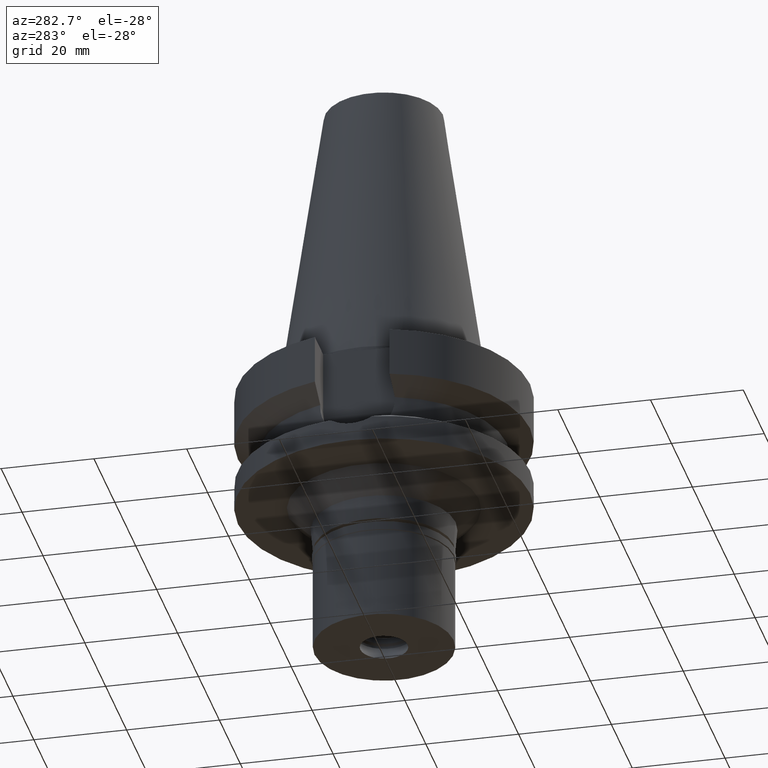
[diagram: clean part render]
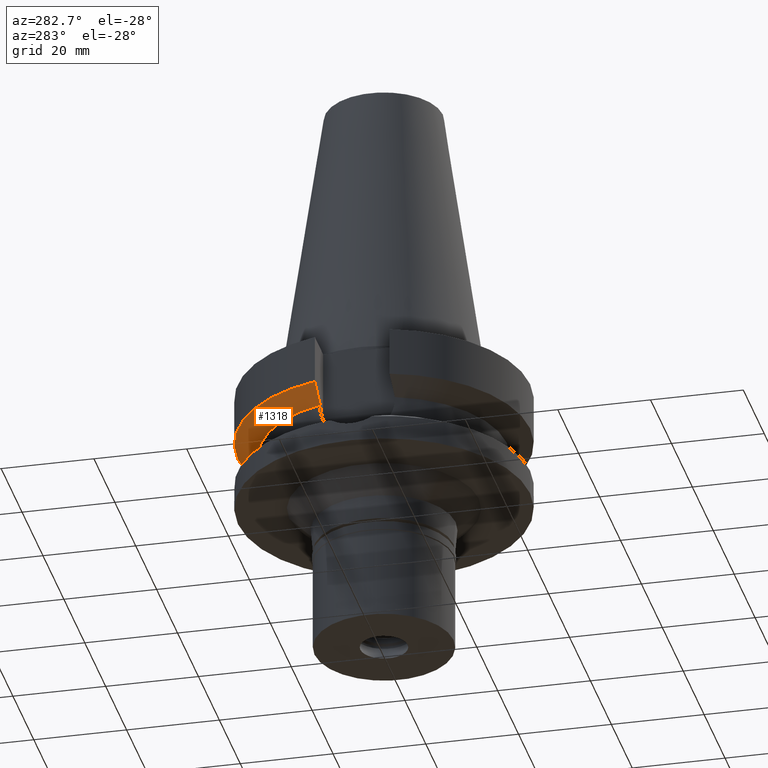
[diagram: same view with one face highlighted and labeled with its STEP entity id]
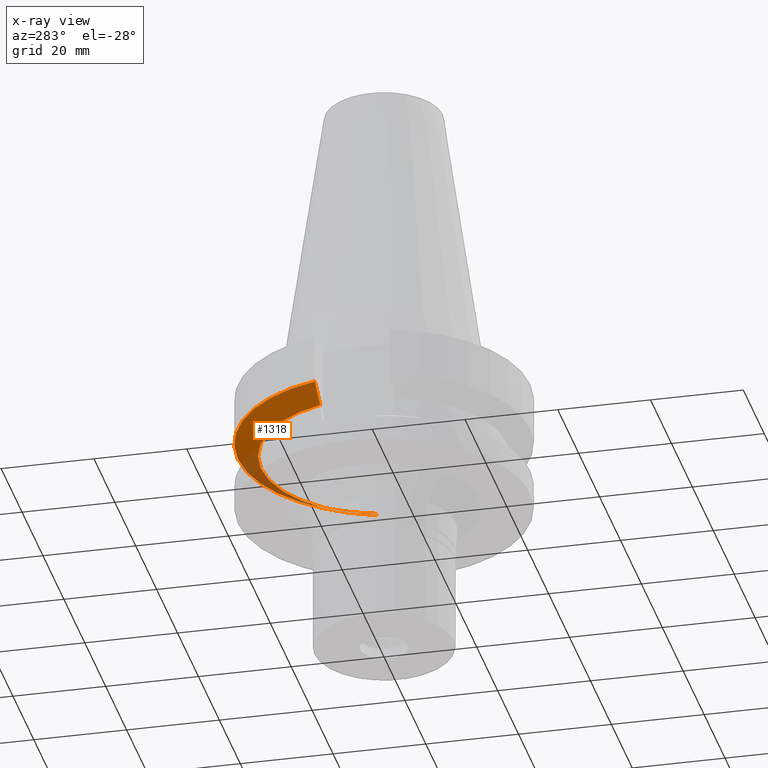
[diagram: x-ray of the same camera — body ghosted, the highlighted face saturated]
A machine part, auxiliary view. The second image highlights one B-rep face of the part: STEP entity #1318.
The next image is the same camera in x-ray: the body ghosted, the highlighted face saturated — about 20% of this face is hidden behind the body in this view.
In plain terms, the highlighted conical surface has half-angle 60 deg.
Its self-contained STEP definition (entity closure, byte-faithful):
#91 = CARTESIAN_POINT ( 'NONE',  ( 30.45402291886999890, 8.049999258190000617, -11.56551233397999923 ) ) ;
#133 = CARTESIAN_POINT ( 'NONE',  ( -30.45402161906999794, 8.050004175477999624, -11.56546804176000087 ) ) ;
#222 = AXIS2_PLACEMENT_3D ( 'NONE', #2815, #224, #2088 ) ;
#224 = DIRECTION ( 'NONE',  ( 0.0000000000000000000, 0.0000000000000000000, 1.000000000000000000 ) ) ;
#325 = B_SPLINE_CURVE_WITH_KNOTS ( 'NONE', 3,
 ( #91, #821, #2517, #1765 ),
 .UNSPECIFIED., .F., .F.,
 ( 4, 4 ),
 ( 0.0000000000000000000, 1.000000000000000000 ),
 .UNSPECIFIED. ) ;
#360 = CARTESIAN_POINT ( 'NONE',  ( -28.57295780117759776, 8.050008345878877591, -12.61547530319244359 ) ) ;
#477 = FACE_OUTER_BOUND ( 'NONE', #1878, .T. ) ;
#602 = EDGE_CURVE ( 'NONE', #2332, #786, #702, .T. ) ;
#652 = AXIS2_PLACEMENT_3D ( 'NONE', #1238, #2907, #776 ) ;
#702 = CIRCLE ( 'NONE', #652, 31.50000000000000000 ) ;
#776 = DIRECTION ( 'NONE',  ( 0.0000000000000000000, 1.000000000000000000, 0.0000000000000000000 ) ) ;
#786 = VERTEX_POINT ( 'NONE', #1196 ) ;
#803 = VERTEX_POINT ( 'NONE', #1896 ) ;
#821 = CARTESIAN_POINT ( 'NONE',  ( 28.57292273478724098, 8.049998517346203641, -12.61549637148051062 ) ) ;
#957 = B_SPLINE_CURVE_WITH_KNOTS ( 'NONE', 3,
 ( #2490, #2758, #360, #133 ),
 .UNSPECIFIED., .F., .F.,
 ( 4, 4 ),
 ( 0.0000000000000000000, 1.000000000000000000 ),
 .UNSPECIFIED. ) ;
#1112 = DIRECTION ( 'NONE',  ( 0.0000000000000000000, 0.0000000000000000000, -1.000000000000000000 ) ) ;
#1166 = CONICAL_SURFACE ( 'NONE', #222, 29.00000000000000000, 1.047197551196400456 ) ;
#1196 = CARTESIAN_POINT ( 'NONE',  ( -30.45402161906999794, 8.050004175477999624, -11.56546804176000087 ) ) ;
#1238 = CARTESIAN_POINT ( 'NONE',  ( 0.0000000000000000000, 1.065333950388000029E-14, -11.56550565266999975 ) ) ;
#1318 = ADVANCED_FACE ( 'NONE', ( #477 ), #1166, .T. ) ;
#1561 = ORIENTED_EDGE ( 'NONE', *, *, #2383, .T. ) ;
#1616 = ORIENTED_EDGE ( 'NONE', *, *, #1696, .T. ) ;
#1696 = EDGE_CURVE ( 'NONE', #2332, #803, #325, .T. ) ;
#1765 = CARTESIAN_POINT ( 'NONE',  ( 25.24772414797999787, 8.049995363206999599, -14.45229242979000084 ) ) ;
#1878 = EDGE_LOOP ( 'NONE', ( #2001, #1616, #2429, #1561 ) ) ;
#1896 = CARTESIAN_POINT ( 'NONE',  ( 25.24772414797999787, 8.049995363206999599, -14.45229242979000084 ) ) ;
#1941 = CIRCLE ( 'NONE', #2794, 26.50000000000000711 ) ;
#2001 = ORIENTED_EDGE ( 'NONE', *, *, #602, .F. ) ;
#2088 = DIRECTION ( 'NONE',  ( 0.0000000000000000000, 1.000000000000000000, 0.0000000000000000000 ) ) ;
#2320 = CARTESIAN_POINT ( 'NONE',  ( 30.45402291886999890, 8.049999258190000617, -11.56551233397999923 ) ) ;
#2332 = VERTEX_POINT ( 'NONE', #2320 ) ;
#2364 = EDGE_CURVE ( 'NONE', #2950, #803, #1941, .T. ) ;
#2383 = EDGE_CURVE ( 'NONE', #2950, #786, #957, .T. ) ;
#2429 = ORIENTED_EDGE ( 'NONE', *, *, #2364, .F. ) ;
#2490 = CARTESIAN_POINT ( 'NONE',  ( -25.24772217529000073, 8.050001550280999396, -14.45224515308999891 ) ) ;
#2517 = CARTESIAN_POINT ( 'NONE',  ( 26.83754558376481825, 8.049990716140035474, -13.57774921595145301 ) ) ;
#2557 = CARTESIAN_POINT ( 'NONE',  ( 0.0000000000000000000, 1.065333950388000029E-14, -14.45225699861000024 ) ) ;
#2758 = CARTESIAN_POINT ( 'NONE',  ( -26.83758051170044467, 8.050003103911411273, -13.57772789895687104 ) ) ;
#2775 = DIRECTION ( 'NONE',  ( -0.9527442516822307583, 0.3037735849057093818, 0.0000000000000000000 ) ) ;
#2794 = AXIS2_PLACEMENT_3D ( 'NONE', #2557, #1112, #2775 ) ;
#2815 = CARTESIAN_POINT ( 'NONE',  ( 0.0000000000000000000, 1.065333950388000029E-14, -13.00888132564000088 ) ) ;
#2907 = DIRECTION ( 'NONE',  ( 0.0000000000000000000, 0.0000000000000000000, 1.000000000000000000 ) ) ;
#2950 = VERTEX_POINT ( 'NONE', #2966 ) ;
#2966 = CARTESIAN_POINT ( 'NONE',  ( -25.24772217529000073, 8.050001550280999396, -14.45224515308999891 ) ) ;